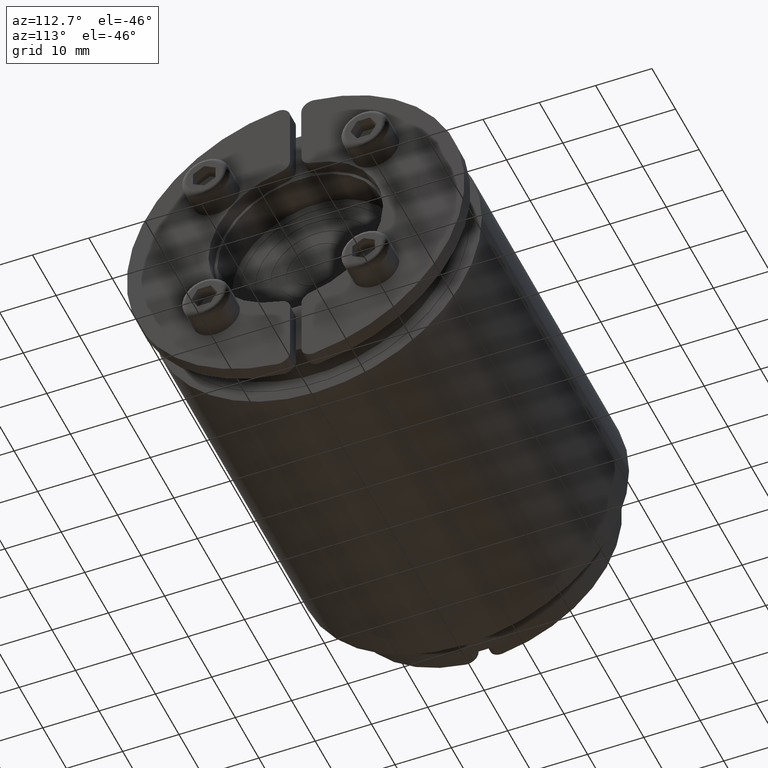
[diagram: clean part render]
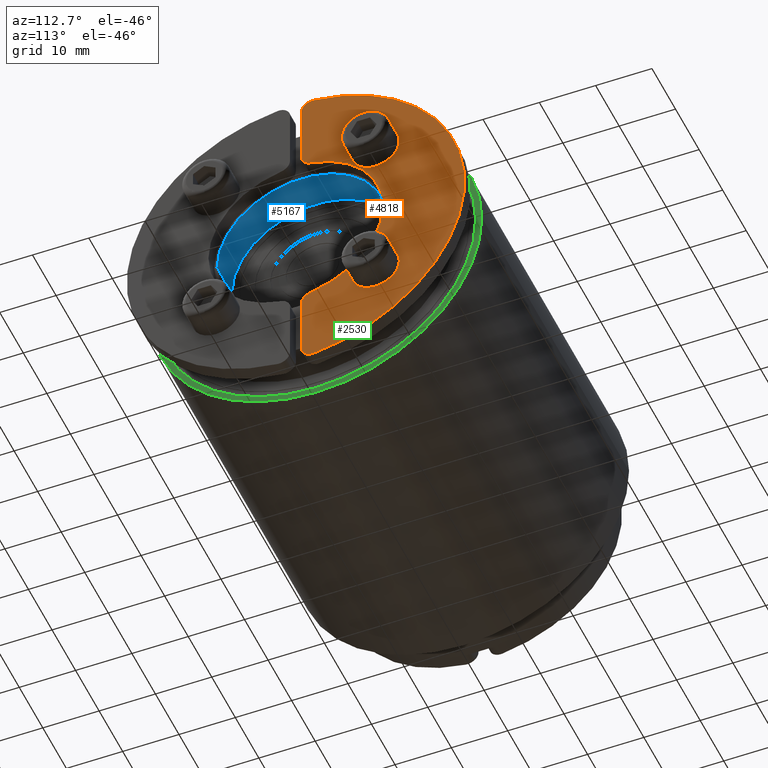
[diagram: same view with three faces highlighted in distinct colors, each labeled with its STEP entity id]
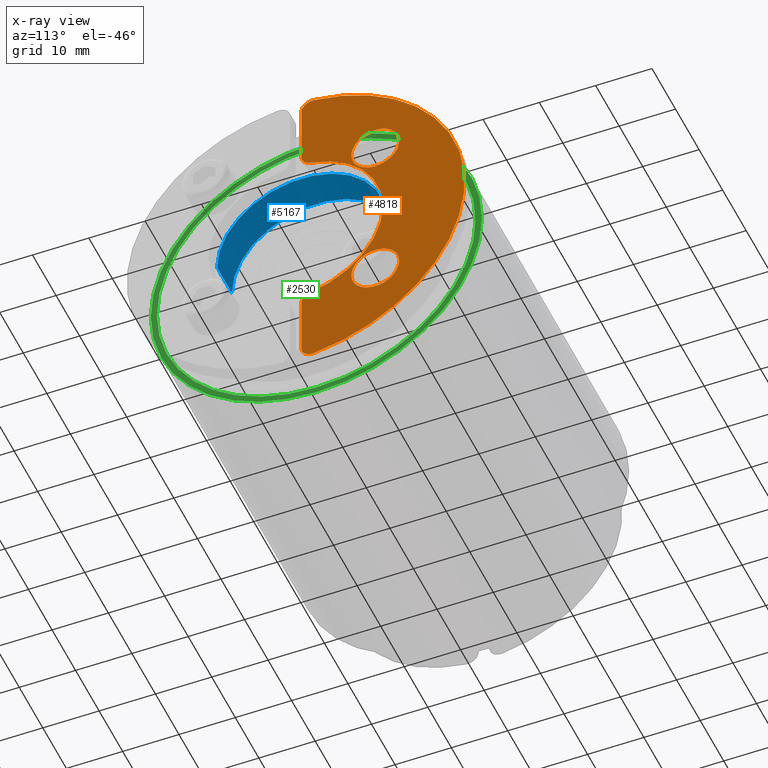
[diagram: x-ray of the same camera — body ghosted, the three highlighted faces saturated]
A machine part, auxiliary view with three faces highlighted in distinct colors.
The next image is the same camera in x-ray (body ghosted, the three faces saturated) — at least one of them is partly hidden behind the body in this view.
Their STEP definitions:

[orange] entity #4818 — the highlighted planar face has unit normal (1, 0, 0).
#849=CARTESIAN_POINT('',(40.0,1.663693790437882,29.326869432435799));
#850=VERTEX_POINT('',#849);
#866=CARTESIAN_POINT('',(40.0,1.0,27.838821814150112));
#867=VERTEX_POINT('',#866);
#874=CARTESIAN_POINT('',(40.0,3.000000000000006,27.838821814150112));
#875=DIRECTION('',(-1.0,0.0,0.0));
#876=DIRECTION('',(0.0,-0.668153104781063,0.744023809142843));
#877=AXIS2_PLACEMENT_3D('',#874,#875,#876);
#878=CIRCLE('',#877,2.0);
#879=EDGE_CURVE('',#867,#850,#878,.T.);
#891=CARTESIAN_POINT('',(40.0,1.663693790437880,-29.326869432435799));
#892=VERTEX_POINT('',#891);
#908=CARTESIAN_POINT('',(40.0,3.214285714285714,-29.827309086589402));
#909=VERTEX_POINT('',#908);
#916=CARTESIAN_POINT('',(40.0,3.000000000000000,-27.838821814150108));
#917=DIRECTION('',(-1.0,0.0,0.0));
#918=DIRECTION('',(0.0,-0.668153104781060,-0.744023809142846));
#919=AXIS2_PLACEMENT_3D('',#916,#917,#918);
#920=CIRCLE('',#919,2.0);
#921=EDGE_CURVE('',#909,#892,#920,.T.);
#933=CARTESIAN_POINT('',(40.0,1.469360544459559,-15.953639040873089));
#934=VERTEX_POINT('',#933);
#950=CARTESIAN_POINT('',(40.0,1.0,-17.240939649566663));
#951=VERTEX_POINT('',#950);
#958=CARTESIAN_POINT('',(40.0,3.000000000000002,-17.240939649566666));
#959=DIRECTION('',(-1.000000000000000,0.0,0.0));
#960=DIRECTION('',(0.0,-0.765319727770222,0.643650304346789));
#961=AXIS2_PLACEMENT_3D('',#958,#959,#960);
#962=CIRCLE('',#961,2.000000000000000);
#963=EDGE_CURVE('',#951,#934,#962,.T.);
#975=CARTESIAN_POINT('',(40.0,1.469360544459557,15.953639040873089));
#976=VERTEX_POINT('',#975);
#992=CARTESIAN_POINT('',(40.0,2.657142857142858,15.270546546759050));
#993=VERTEX_POINT('',#992);
#1000=CARTESIAN_POINT('',(40.0,3.000000000000001,17.240939649566666));
#1001=DIRECTION('',(-1.000000000000000,0.0,0.0));
#1002=DIRECTION('',(0.0,-0.765319727770222,-0.643650304346789));
#1003=AXIS2_PLACEMENT_3D('',#1000,#1001,#1002);
#1004=CIRCLE('',#1003,2.0);
#1005=EDGE_CURVE('',#993,#976,#1004,.T.);
#1561=CARTESIAN_POINT('',(40.0,14.142135623730949,18.392135623730951));
#1562=VERTEX_POINT('',#1561);
#1571=CARTESIAN_POINT('',(40.0,14.142135623730949,9.892135623730949));
#1572=VERTEX_POINT('',#1571);
#1573=CARTESIAN_POINT('',(40.0,14.142135623730949,14.142135623730949));
#1574=DIRECTION('',(-1.0,0.0,0.0));
#1575=DIRECTION('',(0.0,0.0,1.0));
#1576=AXIS2_PLACEMENT_3D('',#1573,#1574,#1575);
#1577=CIRCLE('',#1576,4.250000000000000);
#1578=EDGE_CURVE('',#1572,#1562,#1577,.T.);
#1948=CARTESIAN_POINT('',(40.0,18.392135623730947,-14.142135623730953));
#1949=VERTEX_POINT('',#1948);
#1958=CARTESIAN_POINT('',(40.0,9.892135623730946,-14.142135623730951));
#1959=VERTEX_POINT('',#1958);
#1960=CARTESIAN_POINT('',(40.0,14.142135623730947,-14.142135623730951));
#1961=DIRECTION('',(-1.0,0.0,0.0));
#1962=DIRECTION('',(0.0,1.0,0.0));
#1963=AXIS2_PLACEMENT_3D('',#1960,#1961,#1962);
#1964=CIRCLE('',#1963,4.250000000000000);
#1965=EDGE_CURVE('',#1959,#1949,#1964,.T.);
#2762=CARTESIAN_POINT('',(40.0,14.142135623730947,-14.142135623730951));
#2763=DIRECTION('',(-1.0,0.0,0.0));
#2764=DIRECTION('',(0.0,1.0,0.0));
#2765=AXIS2_PLACEMENT_3D('',#2762,#2763,#2764);
#2766=CIRCLE('',#2765,4.250000000000000);
#2767=EDGE_CURVE('',#1949,#1959,#2766,.T.);
#3642=CARTESIAN_POINT('',(40.0,14.142135623730949,14.142135623730949));
#3643=DIRECTION('',(-1.0,0.0,0.0));
#3644=DIRECTION('',(0.0,0.0,1.0));
#3645=AXIS2_PLACEMENT_3D('',#3642,#3643,#3644);
#3646=CIRCLE('',#3645,4.250000000000000);
#3647=EDGE_CURVE('',#1562,#1572,#3646,.T.);
#4695=CARTESIAN_POINT('',(40.0,1.0,17.240939649566666));
#4696=VERTEX_POINT('',#4695);
#4697=CARTESIAN_POINT('',(40.0,3.000000000000001,17.240939649566666));
#4698=DIRECTION('',(-1.000000000000000,0.0,0.0));
#4699=DIRECTION('',(0.0,-0.765319727770222,-0.643650304346789));
#4700=AXIS2_PLACEMENT_3D('',#4697,#4698,#4699);
#4701=CIRCLE('',#4700,2.0);
#4702=EDGE_CURVE('',#976,#4696,#4701,.T.);
#4728=CARTESIAN_POINT('',(40.0,1.0,17.240939649566666));
#4729=DIRECTION('',(0.0,0.0,1.0));
#4730=VECTOR('',#4729,10.597882164583446);
#4731=LINE('',#4728,#4730);
#4732=EDGE_CURVE('',#4696,#867,#4731,.T.);
#4750=CARTESIAN_POINT('',(40.0,12.483135775353807,-1.387779E-015));
#4751=DIRECTION('',(1.0,0.0,0.0));
#4752=DIRECTION('',(0.0,0.0,-1.0));
#4753=AXIS2_PLACEMENT_3D('',#4750,#4751,#4752);
#4754=PLANE('',#4753);
#4755=ORIENTED_EDGE('',*,*,#1005,.F.);
#4756=CARTESIAN_POINT('',(40.0,2.657142857142859,-15.270546546759050));
#4757=VERTEX_POINT('',#4756);
#4758=CARTESIAN_POINT('',(40.0,0.0,0.0));
#4759=DIRECTION('',(1.000000000000000,0.0,0.0));
#4760=DIRECTION('',(0.0,-0.064516129032258,0.997916664403743));
#4761=AXIS2_PLACEMENT_3D('',#4758,#4759,#4760);
#4762=CIRCLE('',#4761,15.500000000000000);
#4763=EDGE_CURVE('',#4757,#993,#4762,.T.);
#4764=ORIENTED_EDGE('',*,*,#4763,.F.);
#4765=CARTESIAN_POINT('',(40.0,3.000000000000002,-17.240939649566666));
#4766=DIRECTION('',(-1.000000000000000,0.0,0.0));
#4767=DIRECTION('',(0.0,-0.765319727770222,0.643650304346789));
#4768=AXIS2_PLACEMENT_3D('',#4765,#4766,#4767);
#4769=CIRCLE('',#4768,2.000000000000000);
#4770=EDGE_CURVE('',#934,#4757,#4769,.T.);
#4771=ORIENTED_EDGE('',*,*,#4770,.F.);
#4772=ORIENTED_EDGE('',*,*,#963,.F.);
#4773=CARTESIAN_POINT('',(40.0,1.0,-27.838821814150101));
#4774=VERTEX_POINT('',#4773);
#4775=CARTESIAN_POINT('',(40.0,1.0,-27.838821814150101));
#4776=DIRECTION('',(0.0,0.0,1.0));
#4777=VECTOR('',#4776,10.597882164583439);
#4778=LINE('',#4775,#4777);
#4779=EDGE_CURVE('',#4774,#951,#4778,.T.);
#4780=ORIENTED_EDGE('',*,*,#4779,.F.);
#4781=CARTESIAN_POINT('',(40.0,3.000000000000000,-27.838821814150108));
#4782=DIRECTION('',(-1.0,0.0,0.0));
#4783=DIRECTION('',(0.0,-0.668153104781060,-0.744023809142846));
#4784=AXIS2_PLACEMENT_3D('',#4781,#4782,#4783);
#4785=CIRCLE('',#4784,2.0);
#4786=EDGE_CURVE('',#892,#4774,#4785,.T.);
#4787=ORIENTED_EDGE('',*,*,#4786,.F.);
#4788=ORIENTED_EDGE('',*,*,#921,.F.);
#4789=CARTESIAN_POINT('',(40.0,3.214285714285721,29.827309086589402));
#4790=VERTEX_POINT('',#4789);
#4791=CARTESIAN_POINT('',(40.0,0.0,0.0));
#4792=DIRECTION('',(-1.0,0.0,0.0));
#4793=DIRECTION('',(0.0,0.033333333333333,-0.999444290037663));
#4794=AXIS2_PLACEMENT_3D('',#4791,#4792,#4793);
#4795=CIRCLE('',#4794,30.0);
#4796=EDGE_CURVE('',#4790,#909,#4795,.T.);
#4797=ORIENTED_EDGE('',*,*,#4796,.F.);
#4798=CARTESIAN_POINT('',(40.0,3.000000000000006,27.838821814150112));
#4799=DIRECTION('',(-1.0,0.0,0.0));
#4800=DIRECTION('',(0.0,-0.668153104781063,0.744023809142843));
#4801=AXIS2_PLACEMENT_3D('',#4798,#4799,#4800);
#4802=CIRCLE('',#4801,2.0);
#4803=EDGE_CURVE('',#850,#4790,#4802,.T.);
#4804=ORIENTED_EDGE('',*,*,#4803,.F.);
#4805=ORIENTED_EDGE('',*,*,#879,.F.);
#4806=ORIENTED_EDGE('',*,*,#4732,.F.);
#4807=ORIENTED_EDGE('',*,*,#4702,.F.);
#4808=EDGE_LOOP('',(#4755,#4764,#4771,#4772,#4780,#4787,#4788,#4797,#4804,#4805,#4806,#4807));
#4809=FACE_OUTER_BOUND('',#4808,.T.);
#4810=ORIENTED_EDGE('',*,*,#1965,.T.);
#4811=ORIENTED_EDGE('',*,*,#2767,.T.);
#4812=EDGE_LOOP('',(#4810,#4811));
#4813=FACE_BOUND('',#4812,.T.);
#4814=ORIENTED_EDGE('',*,*,#1578,.T.);
#4815=ORIENTED_EDGE('',*,*,#3647,.T.);
#4816=EDGE_LOOP('',(#4814,#4815));
#4817=FACE_BOUND('',#4816,.T.);
#4818=ADVANCED_FACE('',(#4809,#4813,#4817),#4754,.T.);

[blue] entity #5167 — the highlighted cylindrical surface (partial cylindrical patch) has radius 15 mm, axis along (1, 0, 0).
#721=CARTESIAN_POINT('',(37.500000000000000,-15.0,1.836910E-015));
#722=VERTEX_POINT('',#721);
#723=CARTESIAN_POINT('',(31.250000000000000,-15.0,1.836910E-015));
#724=VERTEX_POINT('',#723);
#725=CARTESIAN_POINT('',(37.500000000000000,-15.0,1.836910E-015));
#726=DIRECTION('',(-1.0,0.0,0.0));
#727=VECTOR('',#726,6.250000000000000);
#728=LINE('',#725,#727);
#729=EDGE_CURVE('',#722,#724,#728,.T.);
#731=CARTESIAN_POINT('',(37.500000000000000,15.0,1.836910E-015));
#732=VERTEX_POINT('',#731);
#740=CARTESIAN_POINT('',(31.250000000000000,15.0,1.836910E-015));
#741=VERTEX_POINT('',#740);
#742=CARTESIAN_POINT('',(31.250000000000000,15.0,1.836910E-015));
#743=DIRECTION('',(1.0,0.0,0.0));
#744=VECTOR('',#743,6.250000000000000);
#745=LINE('',#742,#744);
#746=EDGE_CURVE('',#741,#732,#745,.T.);
#5136=CARTESIAN_POINT('',(31.250000000000000,0.0,0.0));
#5137=DIRECTION('',(-1.0,0.0,0.0));
#5138=DIRECTION('',(0.0,-1.0,0.0));
#5139=AXIS2_PLACEMENT_3D('',#5136,#5137,#5138);
#5140=CIRCLE('',#5139,15.0);
#5141=EDGE_CURVE('',#724,#741,#5140,.T.);
#5150=CARTESIAN_POINT('',(0.0,0.0,0.0));
#5151=DIRECTION('',(1.0,0.0,0.0));
#5152=DIRECTION('',(0.0,-1.0,0.0));
#5153=AXIS2_PLACEMENT_3D('',#5150,#5151,#5152);
#5154=CYLINDRICAL_SURFACE('',#5153,15.0);
#5155=ORIENTED_EDGE('',*,*,#729,.T.);
#5156=ORIENTED_EDGE('',*,*,#5141,.T.);
#5157=ORIENTED_EDGE('',*,*,#746,.T.);
#5158=CARTESIAN_POINT('',(37.500000000000000,0.0,0.0));
#5159=DIRECTION('',(-1.0,0.0,0.0));
#5160=DIRECTION('',(0.0,-1.0,0.0));
#5161=AXIS2_PLACEMENT_3D('',#5158,#5159,#5160);
#5162=CIRCLE('',#5161,15.0);
#5163=EDGE_CURVE('',#722,#732,#5162,.T.);
#5164=ORIENTED_EDGE('',*,*,#5163,.F.);
#5165=EDGE_LOOP('',(#5155,#5156,#5157,#5164));
#5166=FACE_OUTER_BOUND('',#5165,.T.);
#5167=ADVANCED_FACE('',(#5166),#5154,.F.);

[green] entity #2530 — the highlighted planar face has unit normal (-1, 0, 0).
#2272=CARTESIAN_POINT('',(31.250000000000000,-29.399999999999999,3.600343E-015));
#2273=VERTEX_POINT('',#2272);
#2289=CARTESIAN_POINT('',(31.250000000000000,29.399999999999999,3.600343E-015));
#2290=VERTEX_POINT('',#2289);
#2297=CARTESIAN_POINT('',(31.250000000000000,0.0,0.0));
#2298=DIRECTION('',(-1.0,0.0,0.0));
#2299=DIRECTION('',(0.0,-1.0,0.0));
#2300=AXIS2_PLACEMENT_3D('',#2297,#2298,#2299);
#2301=CIRCLE('',#2300,29.399999999999999);
#2302=EDGE_CURVE('',#2290,#2273,#2301,.T.);
#2354=CARTESIAN_POINT('',(31.250000000000000,-28.299999999999997,3.465636E-015));
#2355=VERTEX_POINT('',#2354);
#2364=CARTESIAN_POINT('',(31.250000000000000,28.299999999999997,3.465636E-015));
#2365=VERTEX_POINT('',#2364);
#2366=CARTESIAN_POINT('',(31.250000000000000,0.0,0.0));
#2367=DIRECTION('',(-1.0,0.0,0.0));
#2368=DIRECTION('',(0.0,-1.0,0.0));
#2369=AXIS2_PLACEMENT_3D('',#2366,#2367,#2368);
#2370=CIRCLE('',#2369,28.299999999999997);
#2371=EDGE_CURVE('',#2365,#2355,#2370,.T.);
#2451=CARTESIAN_POINT('',(31.250000000000000,0.0,0.0));
#2452=DIRECTION('',(-1.0,0.0,0.0));
#2453=DIRECTION('',(0.0,-1.0,0.0));
#2454=AXIS2_PLACEMENT_3D('',#2451,#2452,#2453);
#2455=CIRCLE('',#2454,28.299999999999997);
#2456=EDGE_CURVE('',#2355,#2365,#2455,.T.);
#2505=CARTESIAN_POINT('',(31.250000000000000,0.0,0.0));
#2506=DIRECTION('',(-1.0,0.0,0.0));
#2507=DIRECTION('',(0.0,-1.0,0.0));
#2508=AXIS2_PLACEMENT_3D('',#2505,#2506,#2507);
#2509=CIRCLE('',#2508,29.399999999999999);
#2510=EDGE_CURVE('',#2273,#2290,#2509,.T.);
#2517=CARTESIAN_POINT('',(31.250000000000000,0.0,0.0));
#2518=DIRECTION('',(-1.0,0.0,0.0));
#2519=DIRECTION('',(0.0,0.0,1.0));
#2520=AXIS2_PLACEMENT_3D('',#2517,#2518,#2519);
#2521=PLANE('',#2520);
#2522=ORIENTED_EDGE('',*,*,#2302,.F.);
#2523=ORIENTED_EDGE('',*,*,#2510,.F.);
#2524=EDGE_LOOP('',(#2522,#2523));
#2525=FACE_OUTER_BOUND('',#2524,.T.);
#2526=ORIENTED_EDGE('',*,*,#2371,.T.);
#2527=ORIENTED_EDGE('',*,*,#2456,.T.);
#2528=EDGE_LOOP('',(#2526,#2527));
#2529=FACE_BOUND('',#2528,.T.);
#2530=ADVANCED_FACE('',(#2525,#2529),#2521,.F.);